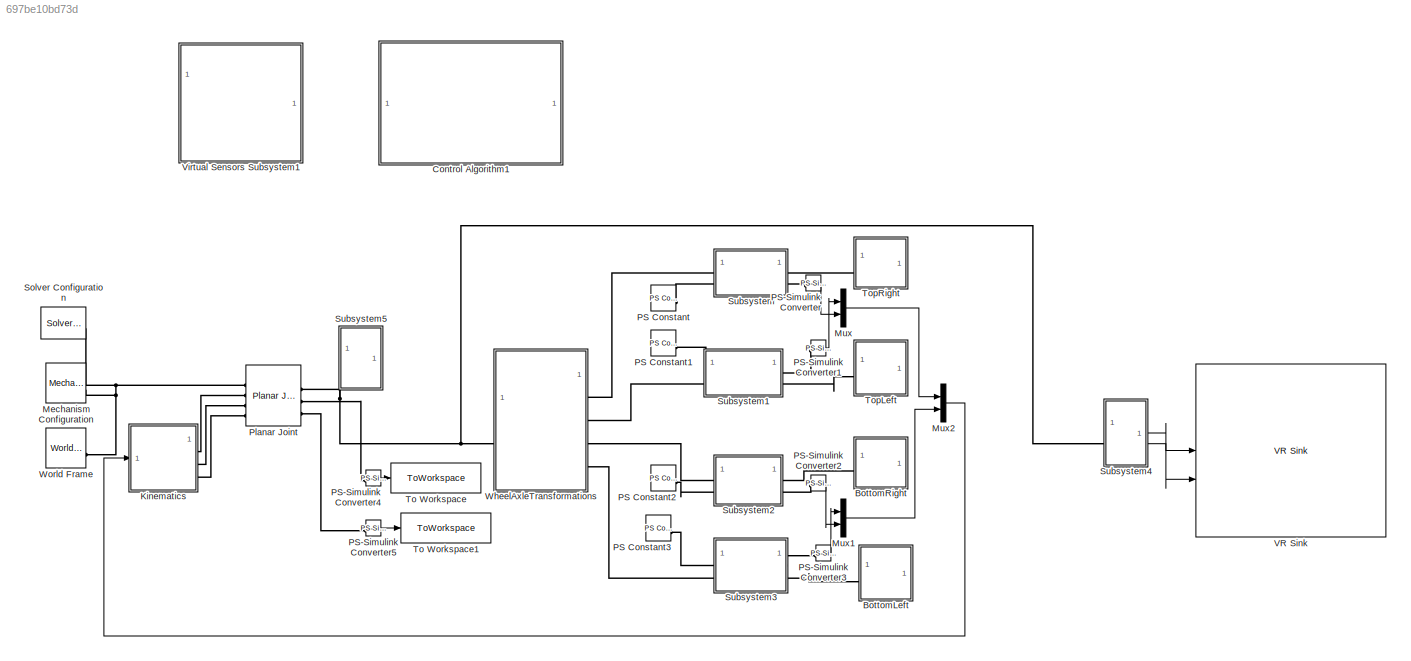
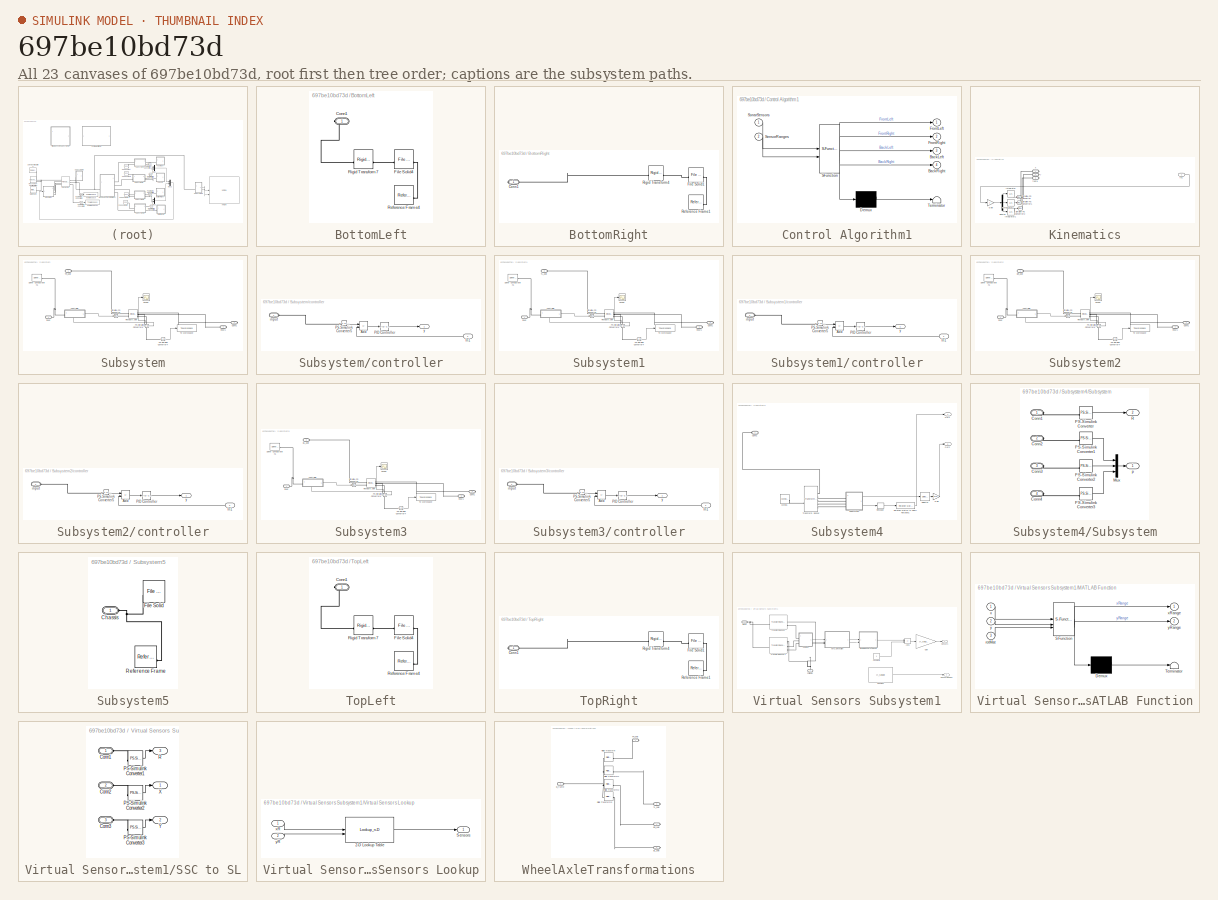
[diagram: thumbnail index - all 23 canvases of the model, root first then tree order]
MODEL slx_697be10bd73d
KIND model
CONFIG AbsTol = auto
CONFIG EnableMultiTasking = off
CONFIG FixedStep = auto
CONFIG MaxStep = auto
CONFIG MinStep = auto
CONFIG RelTol = 1e-3
CONFIG SampleTimeConstraint = Unconstrained
CONFIG SolverName = VariableStepAuto
CONFIG StartTime = 0.0
CONFIG StopTime = 10.0
BLOCK [SubSystem] BottomLeft
BLOCK [PMIOPort] BottomLeft/Conn1
  Side = Right
BLOCK [Reference] BottomLeft/File Solid4  REF=sm_lib/Body Elements/File Solid
  NameLocation = left
  SourceBlock = sm_lib/Body Elements/File Solid
  SourceType = File Solid
BLOCK [Reference] BottomLeft/Reference Frame4  REF=sm_lib/Frames and
Transforms/Reference
Frame
  SourceBlock = sm_lib/Frames and\nTransforms/Reference\nFrame
  SourceType = Reference\nFrame
BLOCK [Reference] BottomLeft/Rigid Transform7  REF=sm_lib/Frames and
Transforms/Rigid
Transform
  SourceBlock = sm_lib/Frames and\nTransforms/Rigid\nTransform
  SourceType = Rigid\nTransform
BLOCK [SubSystem] BottomRight
BLOCK [PMIOPort] BottomRight/Conn1
  Side = Right
BLOCK [Reference] BottomRight/File Solid1  REF=sm_lib/Body Elements/File Solid
  NameLocation = left
  SourceBlock = sm_lib/Body Elements/File Solid
  SourceType = File Solid
BLOCK [Reference] BottomRight/Reference Frame1  REF=sm_lib/Frames and
Transforms/Reference
Frame
  SourceBlock = sm_lib/Frames and\nTransforms/Reference\nFrame
  SourceType = Reference\nFrame
BLOCK [Reference] BottomRight/Rigid Transform4  REF=sm_lib/Frames and
Transforms/Rigid
Transform
  SourceBlock = sm_lib/Frames and\nTransforms/Rigid\nTransform
  SourceType = Rigid\nTransform
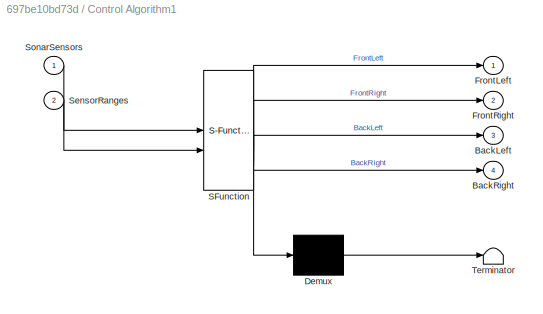
BLOCK [SubSystem] Control Algorithm1
  ErrorFcn = Stateflow.Translate.translate
  PermitHierarchicalResolution = ExplicitOnly
  SFBlockType = Chart
  TreatAsAtomicUnit = on
BLOCK [Demux] Control Algorithm1/ Demux 
  Outputs = 1
BLOCK [S-Function] Control Algorithm1/ SFunction 
  EnableBusSupport = on
  FunctionName = sf_sfun
  PortCounts = [2 5]
  SFcnIsStateOwnerBlock = off
  SFunctionDeploymentMode = off
  Tag = Stateflow S-Function 3
BLOCK [Terminator] Control Algorithm1/ Terminator 
BLOCK [Outport] Control Algorithm1/BackLeft
  Port = 3
BLOCK [Outport] Control Algorithm1/BackRight
  Port = 4
BLOCK [Outport] Control Algorithm1/FrontLeft
BLOCK [Outport] Control Algorithm1/FrontRight
  Port = 2
BLOCK [Inport] Control Algorithm1/SensorRanges
  Port = 2
BLOCK [Inport] Control Algorithm1/SonarSensors
BLOCK [SubSystem] Kinematics
BLOCK [Demux] Kinematics/Demux
  Outputs = 3
BLOCK [Gain] Kinematics/Gain
  Gain = J
  Multiplication = Matrix(K*u) (u vector)
BLOCK [Inport] Kinematics/In1
BLOCK [Integrator] Kinematics/Integrator
BLOCK [Integrator] Kinematics/Integrator1
BLOCK [Integrator] Kinematics/Integrator2
BLOCK [Reference] Kinematics/Simulink-PS Converter  REF=nesl_utility/Simulink-PS
Converter
  SourceBlock = nesl_utility/Simulink-PS\nConverter
  SourceType = Simulink-PS\nConverter
BLOCK [Reference] Kinematics/Simulink-PS Converter1  REF=nesl_utility/Simulink-PS
Converter
  SourceBlock = nesl_utility/Simulink-PS\nConverter
  SourceType = Simulink-PS\nConverter
BLOCK [Reference] Kinematics/Simulink-PS Converter2  REF=nesl_utility/Simulink-PS
Converter
  SourceBlock = nesl_utility/Simulink-PS\nConverter
  SourceType = Simulink-PS\nConverter
BLOCK [PMIOPort] Kinematics/theta
  Port = 3
  Side = Right
BLOCK [PMIOPort] Kinematics/x
  Side = Right
BLOCK [PMIOPort] Kinematics/y
  Port = 2
  Side = Right
BLOCK [Reference] Mechanism Configuration  REF=sm_lib/Utilities/Mechanism
Configuration
  SourceBlock = sm_lib/Utilities/Mechanism\nConfiguration
  SourceType = Mechanism\nConfiguration
BLOCK [Mux] Mux
  DisplayOption = bar
  Inputs = 2
BLOCK [Mux] Mux1
  DisplayOption = bar
  Inputs = 2
BLOCK [Mux] Mux2
  DisplayOption = bar
  Inputs = 2
BLOCK [Reference] PS Constant  REF=fl_lib/Physical Signals/Sources/PS Constant
  SourceBlock = fl_lib/Physical Signals/Sources/PS Constant
  SourceType = PS Constant
BLOCK [Reference] PS Constant1  REF=fl_lib/Physical Signals/Sources/PS Constant
  SourceBlock = fl_lib/Physical Signals/Sources/PS Constant
  SourceType = PS Constant
BLOCK [Reference] PS Constant2  REF=fl_lib/Physical Signals/Sources/PS Constant
  SourceBlock = fl_lib/Physical Signals/Sources/PS Constant
  SourceType = PS Constant
BLOCK [Reference] PS Constant3  REF=fl_lib/Physical Signals/Sources/PS Constant
  SourceBlock = fl_lib/Physical Signals/Sources/PS Constant
  SourceType = PS Constant
BLOCK [Reference] PS-Simulink Converter  REF=nesl_utility/PS-Simulink
Converter
  SourceBlock = nesl_utility/PS-Simulink\nConverter
  SourceType = PS-Simulink\nConverter
BLOCK [Reference] PS-Simulink Converter1  REF=nesl_utility/PS-Simulink
Converter
  SourceBlock = nesl_utility/PS-Simulink\nConverter
  SourceType = PS-Simulink\nConverter
BLOCK [Reference] PS-Simulink Converter2  REF=nesl_utility/PS-Simulink
Converter
  SourceBlock = nesl_utility/PS-Simulink\nConverter
  SourceType = PS-Simulink\nConverter
BLOCK [Reference] PS-Simulink Converter3  REF=nesl_utility/PS-Simulink
Converter
  SourceBlock = nesl_utility/PS-Simulink\nConverter
  SourceType = PS-Simulink\nConverter
BLOCK [Reference] PS-Simulink Converter4  REF=nesl_utility/PS-Simulink
Converter
  SourceBlock = nesl_utility/PS-Simulink\nConverter
  SourceType = PS-Simulink\nConverter
BLOCK [Reference] PS-Simulink Converter5  REF=nesl_utility/PS-Simulink
Converter
  SourceBlock = nesl_utility/PS-Simulink\nConverter
  SourceType = PS-Simulink\nConverter
BLOCK [Reference] Planar Joint  REF=sm_lib/Joints/Planar Joint
  SourceBlock = sm_lib/Joints/Planar Joint
  SourceType = Planar Joint
BLOCK [Reference] Solver Configuration  REF=nesl_utility/Solver
Configuration
  SourceBlock = nesl_utility/Solver\nConfiguration
  SourceType = Solver\nConfiguration
BLOCK [SubSystem] Subsystem
BLOCK [PMIOPort] Subsystem/Conn1
  Port = 3
  Side = Right
BLOCK [Reference] Subsystem/PS-Simulink Converter4  REF=nesl_utility/PS-Simulink
Converter
  SourceBlock = nesl_utility/PS-Simulink\nConverter
  SourceType = PS-Simulink\nConverter
BLOCK [Reference] Subsystem/PS-Simulink Converter6  REF=nesl_utility/PS-Simulink
Converter
  SourceBlock = nesl_utility/PS-Simulink\nConverter
  SourceType = PS-Simulink\nConverter
BLOCK [Reference] Subsystem/Revolute Joint  REF=sm_lib/Joints/Revolute Joint
  SourceBlock = sm_lib/Joints/Revolute Joint
  SourceType = Revolute Joint
BLOCK [Scope] Subsystem/Scope
  Floating = off
  NumInputPorts = 1
  ScopeSpecificationString = Simulink.scopes.TimeScopeBlockCfg('CurrentConfiguration', extmgr.ConfigurationSet(extmgr.Configuration('Core','General UI',true),extmgr.Configuration('Core','Source UI',true),extmgr.Configuration('Sources','WiredSimulink',true),extmgr.Configuration('Visuals','Time Domain',true,'SerializedDisplays',{struct('MinYLimReal','-1.12143','MaxYLimReal','0.1246','YLabelReal','','MinYLimMag','0.00000','MaxYL...<+1340ch>  <repeated x4 — deduplicated; at blocks: Scope>
BLOCK [Reference] Subsystem/Simulink-PS Converter  REF=nesl_utility/Simulink-PS
Converter
  SourceBlock = nesl_utility/Simulink-PS\nConverter
  SourceType = Simulink-PS\nConverter
BLOCK [Reference] Subsystem/Solver Configuration1  REF=nesl_utility/Solver
Configuration
  SourceBlock = nesl_utility/Solver\nConfiguration
  SourceType = Solver\nConfiguration
BLOCK [PMIOPort] Subsystem/TR_axle
  Side = Left
BLOCK [ToWorkspace] Subsystem/To Workspace
  FixptAsFi = on
  MaxDataPoints = inf
  SampleTime = -1
  SaveFormat = Timeseries
  VariableName = trqtopRight
BLOCK [SubSystem] Subsystem/controller
  PortSchema = {"entries":[{"content":{"sides":[{"content":{"connectorIds":["LConn1"]},"type":"ConnectorPlacement.EquallySpacedRectSide","uuid":"4241acf2-7ed6-4d1d-bdf9-96dee7444175"},{"content":{"connectorIds":["Out1"],"side":"RIGHT"},"type":"ConnectorPlacement.EquallySpacedRectSide","uuid":"205e3922-88a0-4f54-bc57-6b32e46413df"},{"content":{"connectorIds":[],"side":"TOP"},"type":"ConnectorPlacement.EquallySpac...<+392ch>  <repeated x4 — deduplicated; at blocks: controller>
BLOCK [Sum] Subsystem/controller/Add
  IconShape = rectangular
  Inputs = +-
BLOCK [Inport] Subsystem/controller/In1
BLOCK [Reference] Subsystem/controller/PID Controller  REF=slpidlib/PID Controller
  LibrarySourceBlock = simulink/Continuous/PID Controller
  SourceBlock = slpidlib/PID Controller
  SourceType = PID 1dof
BLOCK [Reference] Subsystem/controller/PS-Simulink Converter5  REF=nesl_utility/PS-Simulink
Converter
  SourceBlock = nesl_utility/PS-Simulink\nConverter
  SourceType = PS-Simulink\nConverter
BLOCK [PMIOPort] Subsystem/controller/input
  Side = Left
BLOCK [Outport] Subsystem/controller/y
BLOCK [PMIOPort] Subsystem/input
  Port = 2
  Side = Left
BLOCK [PMIOPort] Subsystem/input1
  Port = 4
  Side = Right
BLOCK [SubSystem] Subsystem1
BLOCK [PMIOPort] Subsystem1/Conn1
  Port = 4
  Side = Right
BLOCK [Reference] Subsystem1/PS-Simulink Converter4  REF=nesl_utility/PS-Simulink
Converter
  SourceBlock = nesl_utility/PS-Simulink\nConverter
  SourceType = PS-Simulink\nConverter
BLOCK [Reference] Subsystem1/PS-Simulink Converter6  REF=nesl_utility/PS-Simulink
Converter
  SourceBlock = nesl_utility/PS-Simulink\nConverter
  SourceType = PS-Simulink\nConverter
BLOCK [Reference] Subsystem1/Revolute Joint  REF=sm_lib/Joints/Revolute Joint
  SourceBlock = sm_lib/Joints/Revolute Joint
  SourceType = Revolute Joint
BLOCK [Scope] Subsystem1/Scope
  Floating = off
  NumInputPorts = 1
BLOCK [Reference] Subsystem1/Simulink-PS Converter  REF=nesl_utility/Simulink-PS
Converter
  SourceBlock = nesl_utility/Simulink-PS\nConverter
  SourceType = Simulink-PS\nConverter
BLOCK [Reference] Subsystem1/Solver Configuration1  REF=nesl_utility/Solver
Configuration
  SourceBlock = nesl_utility/Solver\nConfiguration
  SourceType = Solver\nConfiguration
BLOCK [PMIOPort] Subsystem1/TL_axle
  Port = 2
  Side = Left
BLOCK [ToWorkspace] Subsystem1/To Workspace
  FixptAsFi = on
  MaxDataPoints = inf
  SampleTime = -1
  SaveFormat = Timeseries
  VariableName = trqtopLeft
BLOCK [SubSystem] Subsystem1/controller
BLOCK [Sum] Subsystem1/controller/Add
  IconShape = rectangular
  Inputs = +-
BLOCK [Inport] Subsystem1/controller/In1
BLOCK [Reference] Subsystem1/controller/PID Controller  REF=slpidlib/PID Controller
  LibrarySourceBlock = simulink/Continuous/PID Controller
  SourceBlock = slpidlib/PID Controller
  SourceType = PID 1dof
BLOCK [Reference] Subsystem1/controller/PS-Simulink Converter5  REF=nesl_utility/PS-Simulink
Converter
  SourceBlock = nesl_utility/PS-Simulink\nConverter
  SourceType = PS-Simulink\nConverter
BLOCK [PMIOPort] Subsystem1/controller/input
  Side = Left
BLOCK [Outport] Subsystem1/controller/y
BLOCK [PMIOPort] Subsystem1/input
  Side = Left
BLOCK [PMIOPort] Subsystem1/input1
  Port = 3
  Side = Right
BLOCK [SubSystem] Subsystem2
BLOCK [PMIOPort] Subsystem2/BR_axle
  Side = Left
BLOCK [PMIOPort] Subsystem2/Conn1
  Port = 3
  Side = Right
BLOCK [Reference] Subsystem2/PS-Simulink Converter4  REF=nesl_utility/PS-Simulink
Converter
  SourceBlock = nesl_utility/PS-Simulink\nConverter
  SourceType = PS-Simulink\nConverter
BLOCK [Reference] Subsystem2/PS-Simulink Converter6  REF=nesl_utility/PS-Simulink
Converter
  SourceBlock = nesl_utility/PS-Simulink\nConverter
  SourceType = PS-Simulink\nConverter
BLOCK [Reference] Subsystem2/Revolute Joint  REF=sm_lib/Joints/Revolute Joint
  SourceBlock = sm_lib/Joints/Revolute Joint
  SourceType = Revolute Joint
BLOCK [Scope] Subsystem2/Scope
  Floating = off
  NumInputPorts = 1
BLOCK [Reference] Subsystem2/Simulink-PS Converter  REF=nesl_utility/Simulink-PS
Converter
  SourceBlock = nesl_utility/Simulink-PS\nConverter
  SourceType = Simulink-PS\nConverter
BLOCK [Reference] Subsystem2/Solver Configuration1  REF=nesl_utility/Solver
Configuration
  SourceBlock = nesl_utility/Solver\nConfiguration
  SourceType = Solver\nConfiguration
BLOCK [ToWorkspace] Subsystem2/To Workspace
  FixptAsFi = on
  MaxDataPoints = inf
  SampleTime = -1
  SaveFormat = Timeseries
  VariableName = trqbottomRight
BLOCK [SubSystem] Subsystem2/controller
BLOCK [Sum] Subsystem2/controller/Add
  IconShape = rectangular
  Inputs = +-
BLOCK [Inport] Subsystem2/controller/In1
BLOCK [Reference] Subsystem2/controller/PID Controller  REF=slpidlib/PID Controller
  LibrarySourceBlock = simulink/Continuous/PID Controller
  SourceBlock = slpidlib/PID Controller
  SourceType = PID 1dof
BLOCK [Reference] Subsystem2/controller/PS-Simulink Converter5  REF=nesl_utility/PS-Simulink
Converter
  SourceBlock = nesl_utility/PS-Simulink\nConverter
  SourceType = PS-Simulink\nConverter
BLOCK [PMIOPort] Subsystem2/controller/input
  Side = Left
BLOCK [Outport] Subsystem2/controller/y
BLOCK [PMIOPort] Subsystem2/input
  Port = 2
  Side = Left
BLOCK [PMIOPort] Subsystem2/input1
  Port = 4
  Side = Right
BLOCK [SubSystem] Subsystem3
BLOCK [PMIOPort] Subsystem3/BL_axle
  Port = 2
  Side = Left
BLOCK [PMIOPort] Subsystem3/Conn1
  Port = 4
  Side = Right
BLOCK [Reference] Subsystem3/PS-Simulink Converter4  REF=nesl_utility/PS-Simulink
Converter
  SourceBlock = nesl_utility/PS-Simulink\nConverter
  SourceType = PS-Simulink\nConverter
BLOCK [Reference] Subsystem3/PS-Simulink Converter6  REF=nesl_utility/PS-Simulink
Converter
  SourceBlock = nesl_utility/PS-Simulink\nConverter
  SourceType = PS-Simulink\nConverter
BLOCK [Reference] Subsystem3/Revolute Joint  REF=sm_lib/Joints/Revolute Joint
  SourceBlock = sm_lib/Joints/Revolute Joint
  SourceType = Revolute Joint
BLOCK [Scope] Subsystem3/Scope
  Floating = off
  NumInputPorts = 1
BLOCK [Reference] Subsystem3/Simulink-PS Converter  REF=nesl_utility/Simulink-PS
Converter
  SourceBlock = nesl_utility/Simulink-PS\nConverter
  SourceType = Simulink-PS\nConverter
BLOCK [Reference] Subsystem3/Solver Configuration1  REF=nesl_utility/Solver
Configuration
  SourceBlock = nesl_utility/Solver\nConfiguration
  SourceType = Solver\nConfiguration
BLOCK [ToWorkspace] Subsystem3/To Workspace
  FixptAsFi = on
  MaxDataPoints = inf
  SampleTime = -1
  SaveFormat = Timeseries
  VariableName = trqbottomLeft
BLOCK [SubSystem] Subsystem3/controller
BLOCK [Sum] Subsystem3/controller/Add
  IconShape = rectangular
  Inputs = +-
BLOCK [Inport] Subsystem3/controller/In1
BLOCK [Reference] Subsystem3/controller/PID Controller  REF=slpidlib/PID Controller
  LibrarySourceBlock = simulink/Continuous/PID Controller
  SourceBlock = slpidlib/PID Controller
  SourceType = PID 1dof
BLOCK [Reference] Subsystem3/controller/PS-Simulink Converter5  REF=nesl_utility/PS-Simulink
Converter
  SourceBlock = nesl_utility/PS-Simulink\nConverter
  SourceType = PS-Simulink\nConverter
BLOCK [PMIOPort] Subsystem3/controller/input
  Side = Left
BLOCK [Outport] Subsystem3/controller/y
BLOCK [PMIOPort] Subsystem3/input
  Side = Left
BLOCK [PMIOPort] Subsystem3/input1
  Port = 3
  Side = Right
BLOCK [SubSystem] Subsystem4
BLOCK [PMIOPort] Subsystem4/Conn1
  Side = Left
BLOCK [Gain] Subsystem4/Gain
  Gain = [1 1 0]
BLOCK [Outport] Subsystem4/Out1
BLOCK [Outport] Subsystem4/Out2
  Port = 2
BLOCK [Reshape] Subsystem4/Reshape
  OutputDimensionality = Customize
  OutputDimensions = [3 3]
BLOCK [Reference] Subsystem4/Rotation Matrix to VRML Rotation1  REF=vrlib/Utilities/Rotation Matrix
to VR Rotation
  SourceBlock = vrlib/Utilities/Rotation Matrix\nto VR Rotation
  SourceType = Rotation Matrix to VR Rotation
BLOCK [Selector] Subsystem4/Selector
  IndexOptions = Index vector (dialog)
  Indices = [1 2 3]
  InputPortWidth = 3
  OutputSizes = 1
BLOCK [SubSystem] Subsystem4/Subsystem
BLOCK [PMIOPort] Subsystem4/Subsystem/Conn1
  Side = Left
BLOCK [PMIOPort] Subsystem4/Subsystem/Conn2
  Port = 2
  Side = Left
BLOCK [PMIOPort] Subsystem4/Subsystem/Conn3
  Port = 3
  Side = Left
BLOCK [PMIOPort] Subsystem4/Subsystem/Conn4
  Port = 4
  Side = Left
BLOCK [Mux] Subsystem4/Subsystem/Mux
  DisplayOption = bar
  Inputs = 3
BLOCK [Reference] Subsystem4/Subsystem/PS-Simulink Converter  REF=nesl_utility/PS-Simulink
Converter
  SourceBlock = nesl_utility/PS-Simulink\nConverter
  SourceType = PS-Simulink\nConverter
BLOCK [Reference] Subsystem4/Subsystem/PS-Simulink Converter1  REF=nesl_utility/PS-Simulink
Converter
  SourceBlock = nesl_utility/PS-Simulink\nConverter
  SourceType = PS-Simulink\nConverter
BLOCK [Reference] Subsystem4/Subsystem/PS-Simulink Converter2  REF=nesl_utility/PS-Simulink
Converter
  SourceBlock = nesl_utility/PS-Simulink\nConverter
  SourceType = PS-Simulink\nConverter
BLOCK [Reference] Subsystem4/Subsystem/PS-Simulink Converter3  REF=nesl_utility/PS-Simulink
Converter
  SourceBlock = nesl_utility/PS-Simulink\nConverter
  SourceType = PS-Simulink\nConverter
BLOCK [Outport] Subsystem4/Subsystem/R
  Port = 2
BLOCK [Outport] Subsystem4/Subsystem/p
BLOCK [Reference] Subsystem4/Transform Sensor  REF=sm_lib/Frames and
Transforms/Transform
Sensor
  SourceBlock = sm_lib/Frames and\nTransforms/Transform\nSensor
  SourceType = Transform\nSensor
BLOCK [Reference] Subsystem4/World1  REF=sm_lib/Frames and
Transforms/World Frame
  SourceBlock = sm_lib/Frames and\nTransforms/World Frame
  SourceType = World Frame
BLOCK [SubSystem] Subsystem5
BLOCK [PMIOPort] Subsystem5/Chassis
  Side = Left
BLOCK [Reference] Subsystem5/File Solid  REF=sm_lib/Body Elements/File Solid
  SourceBlock = sm_lib/Body Elements/File Solid
  SourceType = File Solid
BLOCK [Reference] Subsystem5/Reference Frame  REF=sm_lib/Frames and
Transforms/Reference
Frame
  SourceBlock = sm_lib/Frames and\nTransforms/Reference\nFrame
  SourceType = Reference\nFrame
BLOCK [ToWorkspace] To Workspace
  FixptAsFi = on
  MaxDataPoints = inf
  SampleTime = -1
  SaveFormat = Timeseries
  VariableName = fx
BLOCK [ToWorkspace] To Workspace1
  FixptAsFi = on
  MaxDataPoints = inf
  SampleTime = -1
  SaveFormat = Timeseries
  VariableName = fy
BLOCK [SubSystem] TopLeft
BLOCK [PMIOPort] TopLeft/Conn1
  Side = Right
BLOCK [Reference] TopLeft/File Solid4  REF=sm_lib/Body Elements/File Solid
  NameLocation = left
  SourceBlock = sm_lib/Body Elements/File Solid
  SourceType = File Solid
BLOCK [Reference] TopLeft/Reference Frame4  REF=sm_lib/Frames and
Transforms/Reference
Frame
  SourceBlock = sm_lib/Frames and\nTransforms/Reference\nFrame
  SourceType = Reference\nFrame
BLOCK [Reference] TopLeft/Rigid Transform7  REF=sm_lib/Frames and
Transforms/Rigid
Transform
  SourceBlock = sm_lib/Frames and\nTransforms/Rigid\nTransform
  SourceType = Rigid\nTransform
BLOCK [SubSystem] TopRight
BLOCK [PMIOPort] TopRight/Conn1
  Side = Right
BLOCK [Reference] TopRight/File Solid1  REF=sm_lib/Body Elements/File Solid
  NameLocation = left
  SourceBlock = sm_lib/Body Elements/File Solid
  SourceType = File Solid
BLOCK [Reference] TopRight/Reference Frame1  REF=sm_lib/Frames and
Transforms/Reference
Frame
  SourceBlock = sm_lib/Frames and\nTransforms/Reference\nFrame
  SourceType = Reference\nFrame
BLOCK [Reference] TopRight/Rigid Transform4  REF=sm_lib/Frames and
Transforms/Rigid
Transform
  SourceBlock = sm_lib/Frames and\nTransforms/Rigid\nTransform
  SourceType = Rigid\nTransform
BLOCK [Reference] VR Sink  REF=vrlib/VR Sink
  InstantiateOnLoad = on
  SourceBlock = vrlib/VR Sink
  SourceType = Virtual Reality Sink
BLOCK [SubSystem] Virtual Sensors Subsystem1
BLOCK [Sum] Virtual Sensors Subsystem1/Add1
  IconShape = rectangular
  Inputs = -+
BLOCK [PMIOPort] Virtual Sensors Subsystem1/Base
  Side = Left
BLOCK [Constant] Virtual Sensors Subsystem1/Constant
  Value = [r_range]
BLOCK [Constant] Virtual Sensors Subsystem1/Constant1
BLOCK [PMIOPort] Virtual Sensors Subsystem1/Follower
  NameLocation = right
  Port = 2
  Side = Left
BLOCK [Gain] Virtual Sensors Subsystem1/Gain
  Gain = [r_range]
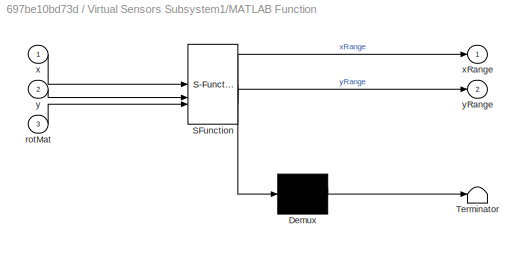
BLOCK [SubSystem] Virtual Sensors Subsystem1/MATLAB Function
  ErrorFcn = Stateflow.Translate.translate
  PermitHierarchicalResolution = ExplicitOnly
  SFBlockType = MATLAB Function
  TreatAsAtomicUnit = on
BLOCK [Demux] Virtual Sensors Subsystem1/MATLAB Function/ Demux 
  Outputs = 1
BLOCK [S-Function] Virtual Sensors Subsystem1/MATLAB Function/ SFunction 
  EnableBusSupport = on
  FunctionName = sf_sfun
  Parameters = r_range
  PortCounts = [3 3]
  SFcnIsStateOwnerBlock = off
  SFunctionDeploymentMode = off
  Tag = Stateflow S-Function 4
BLOCK [Terminator] Virtual Sensors Subsystem1/MATLAB Function/ Terminator 
BLOCK [Inport] Virtual Sensors Subsystem1/MATLAB Function/rotMat
  Port = 3
BLOCK [Inport] Virtual Sensors Subsystem1/MATLAB Function/x
BLOCK [Outport] Virtual Sensors Subsystem1/MATLAB Function/xRange
BLOCK [Inport] Virtual Sensors Subsystem1/MATLAB Function/y
  Port = 2
BLOCK [Outport] Virtual Sensors Subsystem1/MATLAB Function/yRange
  Port = 2
BLOCK [SubSystem] Virtual Sensors Subsystem1/SSC to SL
BLOCK [PMIOPort] Virtual Sensors Subsystem1/SSC to SL/Conn1
  Side = Left
BLOCK [PMIOPort] Virtual Sensors Subsystem1/SSC to SL/Conn2
  Port = 2
  Side = Left
BLOCK [PMIOPort] Virtual Sensors Subsystem1/SSC to SL/Conn3
  Port = 3
  Side = Left
BLOCK [Reference] Virtual Sensors Subsystem1/SSC to SL/PS-Simulink Converter1  REF=nesl_utility/PS-Simulink
Converter
  SourceBlock = nesl_utility/PS-Simulink\nConverter
  SourceType = PS-Simulink\nConverter
BLOCK [Reference] Virtual Sensors Subsystem1/SSC to SL/PS-Simulink Converter2  REF=nesl_utility/PS-Simulink
Converter
  SourceBlock = nesl_utility/PS-Simulink\nConverter
  SourceType = PS-Simulink\nConverter
BLOCK [Reference] Virtual Sensors Subsystem1/SSC to SL/PS-Simulink Converter3  REF=nesl_utility/PS-Simulink
Converter
  SourceBlock = nesl_utility/PS-Simulink\nConverter
  SourceType = PS-Simulink\nConverter
BLOCK [Outport] Virtual Sensors Subsystem1/SSC to SL/R
  Port = 3
BLOCK [Outport] Virtual Sensors Subsystem1/SSC to SL/X
BLOCK [Outport] Virtual Sensors Subsystem1/SSC to SL/Y
  Port = 2
BLOCK [Outport] Virtual Sensors Subsystem1/Sensor Ranges
  Port = 2
BLOCK [Outport] Virtual Sensors Subsystem1/Sensors
BLOCK [Reference] Virtual Sensors Subsystem1/Transform Sensor  REF=sm_lib/Frames and
Transforms/Transform
Sensor
  SourceBlock = sm_lib/Frames and\nTransforms/Transform\nSensor
  SourceType = Transform\nSensor
BLOCK [Reference] Virtual Sensors Subsystem1/Transform Sensor1  REF=sm_lib/Frames and
Transforms/Transform
Sensor
  SourceBlock = sm_lib/Frames and\nTransforms/Transform\nSensor
  SourceType = Transform\nSensor
BLOCK [SubSystem] Virtual Sensors Subsystem1/Virtual Sensors Lookup
BLOCK [Lookup_n-D] Virtual Sensors Subsystem1/Virtual Sensors Lookup/2-D Lookup Table
  BreakpointsForDimension1 = -1:0.001:1
  BreakpointsForDimension2 = -6:0.001:6
  InputPortMap = u0,u1
  RndMeth = Simplest
  Table = World_LUT
BLOCK [Outport] Virtual Sensors Subsystem1/Virtual Sensors Lookup/Sensors
BLOCK [Inport] Virtual Sensors Subsystem1/Virtual Sensors Lookup/xR
  OutDataTypeStr = double
  SignalType = real
  VarSizeSig = No
BLOCK [Inport] Virtual Sensors Subsystem1/Virtual Sensors Lookup/yR
  OutDataTypeStr = double
  Port = 2
  SignalType = real
  VarSizeSig = No
BLOCK [SubSystem] WheelAxleTransformations
BLOCK [PMIOPort] WheelAxleTransformations/BL_axle
  Port = 5
  Side = Right
BLOCK [PMIOPort] WheelAxleTransformations/BR_axle
  Port = 4
  Side = Right
BLOCK [PMIOPort] WheelAxleTransformations/B_frame
  Port = 2
  Side = Left
BLOCK [Reference] WheelAxleTransformations/Rigid Transform  REF=sm_lib/Frames and
Transforms/Rigid
Transform
  SourceBlock = sm_lib/Frames and\nTransforms/Rigid\nTransform
  SourceType = Rigid\nTransform
BLOCK [Reference] WheelAxleTransformations/Rigid Transform1  REF=sm_lib/Frames and
Transforms/Rigid
Transform
  SourceBlock = sm_lib/Frames and\nTransforms/Rigid\nTransform
  SourceType = Rigid\nTransform
BLOCK [Reference] WheelAxleTransformations/Rigid Transform2  REF=sm_lib/Frames and
Transforms/Rigid
Transform
  SourceBlock = sm_lib/Frames and\nTransforms/Rigid\nTransform
  SourceType = Rigid\nTransform
BLOCK [Reference] WheelAxleTransformations/Rigid Transform3  REF=sm_lib/Frames and
Transforms/Rigid
Transform
  SourceBlock = sm_lib/Frames and\nTransforms/Rigid\nTransform
  SourceType = Rigid\nTransform
BLOCK [PMIOPort] WheelAxleTransformations/TL_axle
  Port = 3
  Side = Right
BLOCK [PMIOPort] WheelAxleTransformations/TR_axle
  Side = Right
BLOCK [Reference] World Frame  REF=sm_lib/Frames and
Transforms/World Frame
  SourceBlock = sm_lib/Frames and\nTransforms/World Frame
  SourceType = World Frame
LINE Kinematics/Demux:1 -> Kinematics/Integrator:1
LINE Kinematics/Demux:2 -> Kinematics/Integrator2:1
LINE Kinematics/Demux:3 -> Kinematics/Integrator1:1
LINE Kinematics/Gain:1 -> Kinematics/Demux:1
LINE Kinematics/In1:1 -> Kinematics/Gain:1
LINE Kinematics/Integrator1:1 -> Kinematics/Simulink-PS Converter2:1
LINE Kinematics/Integrator2:1 -> Kinematics/Simulink-PS Converter1:1
LINE Kinematics/Integrator:1 -> Kinematics/Simulink-PS Converter:1
LINE Mux1:1 -> Mux2:2
LINE Mux2:1 -> Kinematics:1
LINE Mux:1 -> Mux2:1
LINE PS-Simulink Converter1:1 -> Mux:1
LINE PS-Simulink Converter2:1 -> Mux1:2
LINE PS-Simulink Converter3:1 -> Mux1:1
LINE PS-Simulink Converter4:1 -> To Workspace:1
LINE PS-Simulink Converter5:1 -> To Workspace1:1
LINE PS-Simulink Converter:1 -> Mux:2
LINE Subsystem/PS-Simulink Converter4:1 -> Subsystem/To Workspace:1
NET Subsystem/PS-Simulink Converter6:1 -> Subsystem/Scope:1, Subsystem/controller:1
LINE Subsystem/controller/Add:1 -> Subsystem/controller/PID Controller:1
LINE Subsystem/controller/In1:1 -> Subsystem/controller/Add:2
LINE Subsystem/controller/PID Controller:1 -> Subsystem/controller/y:1
LINE Subsystem/controller/PS-Simulink Converter5:1 -> Subsystem/controller/Add:1
LINE Subsystem/controller:1 -> Subsystem/Simulink-PS Converter:1
LINE Subsystem1/PS-Simulink Converter4:1 -> Subsystem1/To Workspace:1
NET Subsystem1/PS-Simulink Converter6:1 -> Subsystem1/Scope:1, Subsystem1/controller:1
LINE Subsystem1/controller/Add:1 -> Subsystem1/controller/PID Controller:1
LINE Subsystem1/controller/In1:1 -> Subsystem1/controller/Add:2
LINE Subsystem1/controller/PID Controller:1 -> Subsystem1/controller/y:1
LINE Subsystem1/controller/PS-Simulink Converter5:1 -> Subsystem1/controller/Add:1
LINE Subsystem1/controller:1 -> Subsystem1/Simulink-PS Converter:1
LINE Subsystem2/PS-Simulink Converter4:1 -> Subsystem2/To Workspace:1
NET Subsystem2/PS-Simulink Converter6:1 -> Subsystem2/Scope:1, Subsystem2/controller:1
LINE Subsystem2/controller/Add:1 -> Subsystem2/controller/PID Controller:1
LINE Subsystem2/controller/In1:1 -> Subsystem2/controller/Add:2
LINE Subsystem2/controller/PID Controller:1 -> Subsystem2/controller/y:1
LINE Subsystem2/controller/PS-Simulink Converter5:1 -> Subsystem2/controller/Add:1
LINE Subsystem2/controller:1 -> Subsystem2/Simulink-PS Converter:1
LINE Subsystem3/PS-Simulink Converter4:1 -> Subsystem3/To Workspace:1
NET Subsystem3/PS-Simulink Converter6:1 -> Subsystem3/Scope:1, Subsystem3/controller:1
LINE Subsystem3/controller/Add:1 -> Subsystem3/controller/PID Controller:1
LINE Subsystem3/controller/In1:1 -> Subsystem3/controller/Add:2
LINE Subsystem3/controller/PID Controller:1 -> Subsystem3/controller/y:1
LINE Subsystem3/controller/PS-Simulink Converter5:1 -> Subsystem3/controller/Add:1
LINE Subsystem3/controller:1 -> Subsystem3/Simulink-PS Converter:1
LINE Subsystem4/Gain:1 -> Subsystem4/Out2:1
LINE Subsystem4/Reshape:1 -> Subsystem4/Rotation Matrix to VRML Rotation1:1
LINE Subsystem4/Rotation Matrix to VRML Rotation1:1 -> Subsystem4/Out1:1
LINE Subsystem4/Selector:1 -> Subsystem4/Gain:1
LINE Subsystem4/Subsystem/Mux:1 -> Subsystem4/Subsystem/p:1
LINE Subsystem4/Subsystem/PS-Simulink Converter1:1 -> Subsystem4/Subsystem/Mux:1
LINE Subsystem4/Subsystem/PS-Simulink Converter2:1 -> Subsystem4/Subsystem/Mux:2
LINE Subsystem4/Subsystem/PS-Simulink Converter3:1 -> Subsystem4/Subsystem/Mux:3
LINE Subsystem4/Subsystem/PS-Simulink Converter:1 -> Subsystem4/Subsystem/R:1
LINE Subsystem4/Subsystem:1 -> Subsystem4/Selector:1
LINE Subsystem4/Subsystem:2 -> Subsystem4/Reshape:1
LINE Subsystem4:1 -> VR Sink:1
LINE Subsystem4:2 -> VR Sink:2
LINE Virtual Sensors Subsystem1/Add1:1 -> Virtual Sensors Subsystem1/Gain:1
LINE Virtual Sensors Subsystem1/Constant1:1 -> Virtual Sensors Subsystem1/Add1:2
LINE Virtual Sensors Subsystem1/Constant:1 -> Virtual Sensors Subsystem1/Sensor Ranges:1
LINE Virtual Sensors Subsystem1/Gain:1 -> Virtual Sensors Subsystem1/Sensors:1
LINE Virtual Sensors Subsystem1/MATLAB Function:1 -> Virtual Sensors Subsystem1/Virtual Sensors Lookup:1
LINE Virtual Sensors Subsystem1/MATLAB Function:2 -> Virtual Sensors Subsystem1/Virtual Sensors Lookup:2
LINE Virtual Sensors Subsystem1/SSC to SL/PS-Simulink Converter1:1 -> Virtual Sensors Subsystem1/SSC to SL/R:1
LINE Virtual Sensors Subsystem1/SSC to SL/PS-Simulink Converter2:1 -> Virtual Sensors Subsystem1/SSC to SL/X:1
LINE Virtual Sensors Subsystem1/SSC to SL/PS-Simulink Converter3:1 -> Virtual Sensors Subsystem1/SSC to SL/Y:1
LINE Virtual Sensors Subsystem1/SSC to SL:1 -> Virtual Sensors Subsystem1/MATLAB Function:1
LINE Virtual Sensors Subsystem1/SSC to SL:2 -> Virtual Sensors Subsystem1/MATLAB Function:2
LINE Virtual Sensors Subsystem1/SSC to SL:3 -> Virtual Sensors Subsystem1/MATLAB Function:3
LINE Virtual Sensors Subsystem1/Virtual Sensors Lookup/2-D Lookup Table:1 -> Virtual Sensors Subsystem1/Virtual Sensors Lookup/Sensors:1
LINE Virtual Sensors Subsystem1/Virtual Sensors Lookup/xR:1 -> Virtual Sensors Subsystem1/Virtual Sensors Lookup/2-D Lookup Table:1
LINE Virtual Sensors Subsystem1/Virtual Sensors Lookup/yR:1 -> Virtual Sensors Subsystem1/Virtual Sensors Lookup/2-D Lookup Table:2
LINE Virtual Sensors Subsystem1/Virtual Sensors Lookup:1 -> Virtual Sensors Subsystem1/Add1:1
PLINE BottomLeft/Conn1:RConn1 -- BottomLeft/Rigid Transform7:RConn1
PLINE BottomLeft/File Solid4:LConn1 -- BottomLeft/Rigid Transform7:LConn1
PLINE BottomLeft/File Solid4:RConn1 -- BottomLeft/Reference Frame4:RConn1
PLINE BottomLeft:RConn1 -- Subsystem3:RConn2
PLINE BottomRight/Conn1:RConn1 -- BottomRight/Rigid Transform4:RConn1
PLINE BottomRight/File Solid1:LConn1 -- BottomRight/Rigid Transform4:LConn1
PLINE BottomRight/File Solid1:RConn1 -- BottomRight/Reference Frame1:RConn1
PLINE BottomRight:RConn1 -- Subsystem2:RConn1
PLINE Kinematics/Simulink-PS Converter1:RConn1 -- Kinematics/x:RConn1
PLINE Kinematics/Simulink-PS Converter2:RConn1 -- Kinematics/theta:RConn1
PLINE Kinematics/Simulink-PS Converter:RConn1 -- Kinematics/y:RConn1
PLINE Kinematics:RConn1 -- Planar Joint:LConn2
PLINE Kinematics:RConn2 -- Planar Joint:LConn3
PLINE Kinematics:RConn3 -- Planar Joint:LConn4
PNET net1: Mechanism Configuration:RConn1 -- Planar Joint:LConn1 -- Solver Configuration:RConn1 -- World Frame:RConn1
PLINE PS Constant1:RConn1 -- Subsystem1:LConn1
PLINE PS Constant2:RConn1 -- Subsystem2:LConn2
PLINE PS Constant3:RConn1 -- Subsystem3:LConn1
PLINE PS Constant:RConn1 -- Subsystem:LConn2
PLINE PS-Simulink Converter1:LConn1 -- Subsystem1:RConn1
PLINE PS-Simulink Converter2:LConn1 -- Subsystem2:RConn2
PLINE PS-Simulink Converter3:LConn1 -- Subsystem3:RConn1
PLINE PS-Simulink Converter4:LConn1 -- Planar Joint:RConn2
PLINE PS-Simulink Converter5:LConn1 -- Planar Joint:RConn3
PLINE PS-Simulink Converter:LConn1 -- Subsystem:RConn2
PNET net2: Planar Joint:RConn1 -- Subsystem4:LConn1 -- Subsystem5:LConn1 -- WheelAxleTransformations:LConn1
PLINE Subsystem/Conn1:RConn1 -- Subsystem/Revolute Joint:RConn1
PLINE Subsystem/PS-Simulink Converter4:LConn1 -- Subsystem/Revolute Joint:RConn3
PNET net3: Subsystem/PS-Simulink Converter6:LConn1 -- Subsystem/Revolute Joint:RConn2 -- Subsystem/input1:RConn1
PLINE Subsystem/Revolute Joint:LConn1 -- Subsystem/TR_axle:RConn1
PLINE Subsystem/Revolute Joint:LConn2 -- Subsystem/Simulink-PS Converter:RConn1
PNET net4: Subsystem/Solver Configuration1:RConn1 -- Subsystem/controller:LConn1 -- Subsystem/input:RConn1
PLINE Subsystem/controller/PS-Simulink Converter5:LConn1 -- Subsystem/controller/input:RConn1
PLINE Subsystem1/Conn1:RConn1 -- Subsystem1/Revolute Joint:RConn1
PLINE Subsystem1/PS-Simulink Converter4:LConn1 -- Subsystem1/Revolute Joint:RConn3
PNET net5: Subsystem1/PS-Simulink Converter6:LConn1 -- Subsystem1/Revolute Joint:RConn2 -- Subsystem1/input1:RConn1
PLINE Subsystem1/Revolute Joint:LConn1 -- Subsystem1/TL_axle:RConn1
PLINE Subsystem1/Revolute Joint:LConn2 -- Subsystem1/Simulink-PS Converter:RConn1
PNET net6: Subsystem1/Solver Configuration1:RConn1 -- Subsystem1/controller:LConn1 -- Subsystem1/input:RConn1
PLINE Subsystem1/controller/PS-Simulink Converter5:LConn1 -- Subsystem1/controller/input:RConn1
PLINE Subsystem1:LConn2 -- WheelAxleTransformations:RConn2
PLINE Subsystem1:RConn2 -- TopLeft:RConn1
PLINE Subsystem2/BR_axle:RConn1 -- Subsystem2/Revolute Joint:LConn1
PLINE Subsystem2/Conn1:RConn1 -- Subsystem2/Revolute Joint:RConn1
PLINE Subsystem2/PS-Simulink Converter4:LConn1 -- Subsystem2/Revolute Joint:RConn3
PNET net7: Subsystem2/PS-Simulink Converter6:LConn1 -- Subsystem2/Revolute Joint:RConn2 -- Subsystem2/input1:RConn1
PLINE Subsystem2/Revolute Joint:LConn2 -- Subsystem2/Simulink-PS Converter:RConn1
PNET net8: Subsystem2/Solver Configuration1:RConn1 -- Subsystem2/controller:LConn1 -- Subsystem2/input:RConn1
PLINE Subsystem2/controller/PS-Simulink Converter5:LConn1 -- Subsystem2/controller/input:RConn1
PLINE Subsystem2:LConn1 -- WheelAxleTransformations:RConn3
PLINE Subsystem3/BL_axle:RConn1 -- Subsystem3/Revolute Joint:LConn1
PLINE Subsystem3/Conn1:RConn1 -- Subsystem3/Revolute Joint:RConn1
PLINE Subsystem3/PS-Simulink Converter4:LConn1 -- Subsystem3/Revolute Joint:RConn3
PNET net9: Subsystem3/PS-Simulink Converter6:LConn1 -- Subsystem3/Revolute Joint:RConn2 -- Subsystem3/input1:RConn1
PLINE Subsystem3/Revolute Joint:LConn2 -- Subsystem3/Simulink-PS Converter:RConn1
PNET net10: Subsystem3/Solver Configuration1:RConn1 -- Subsystem3/controller:LConn1 -- Subsystem3/input:RConn1
PLINE Subsystem3/controller/PS-Simulink Converter5:LConn1 -- Subsystem3/controller/input:RConn1
PLINE Subsystem3:LConn2 -- WheelAxleTransformations:RConn4
PLINE Subsystem4/Conn1:RConn1 -- Subsystem4/Transform Sensor:RConn1
PLINE Subsystem4/Subsystem/Conn1:RConn1 -- Subsystem4/Subsystem/PS-Simulink Converter:LConn1
PLINE Subsystem4/Subsystem/Conn2:RConn1 -- Subsystem4/Subsystem/PS-Simulink Converter1:LConn1
PLINE Subsystem4/Subsystem/Conn3:RConn1 -- Subsystem4/Subsystem/PS-Simulink Converter2:LConn1
PLINE Subsystem4/Subsystem/Conn4:RConn1 -- Subsystem4/Subsystem/PS-Simulink Converter3:LConn1
PLINE Subsystem4/Subsystem:LConn1 -- Subsystem4/Transform Sensor:RConn2
PLINE Subsystem4/Subsystem:LConn2 -- Subsystem4/Transform Sensor:RConn3
PLINE Subsystem4/Subsystem:LConn3 -- Subsystem4/Transform Sensor:RConn4
PLINE Subsystem4/Subsystem:LConn4 -- Subsystem4/Transform Sensor:RConn5
PLINE Subsystem4/Transform Sensor:LConn1 -- Subsystem4/World1:RConn1
PNET net11: Subsystem5/Chassis:RConn1 -- Subsystem5/File Solid:RConn1 -- Subsystem5/Reference Frame:RConn1
PLINE Subsystem:LConn1 -- WheelAxleTransformations:RConn1
PLINE Subsystem:RConn1 -- TopRight:RConn1
PLINE TopLeft/Conn1:RConn1 -- TopLeft/Rigid Transform7:RConn1
PLINE TopLeft/File Solid4:LConn1 -- TopLeft/Rigid Transform7:LConn1
PLINE TopLeft/File Solid4:RConn1 -- TopLeft/Reference Frame4:RConn1
PLINE TopRight/Conn1:RConn1 -- TopRight/Rigid Transform4:RConn1
PLINE TopRight/File Solid1:LConn1 -- TopRight/Rigid Transform4:LConn1
PLINE TopRight/File Solid1:RConn1 -- TopRight/Reference Frame1:RConn1
PNET net12: Virtual Sensors Subsystem1/Base:RConn1 -- Virtual Sensors Subsystem1/Transform Sensor1:LConn1 -- Virtual Sensors Subsystem1/Transform Sensor:LConn1
PNET net13: Virtual Sensors Subsystem1/Follower:RConn1 -- Virtual Sensors Subsystem1/Transform Sensor1:RConn1 -- Virtual Sensors Subsystem1/Transform Sensor:RConn1
PLINE Virtual Sensors Subsystem1/SSC to SL/Conn1:RConn1 -- Virtual Sensors Subsystem1/SSC to SL/PS-Simulink Converter1:LConn1
PLINE Virtual Sensors Subsystem1/SSC to SL/Conn2:RConn1 -- Virtual Sensors Subsystem1/SSC to SL/PS-Simulink Converter2:LConn1
PLINE Virtual Sensors Subsystem1/SSC to SL/Conn3:RConn1 -- Virtual Sensors Subsystem1/SSC to SL/PS-Simulink Converter3:LConn1
PLINE Virtual Sensors Subsystem1/SSC to SL:LConn1 -- Virtual Sensors Subsystem1/Transform Sensor:RConn2
PLINE Virtual Sensors Subsystem1/SSC to SL:LConn2 -- Virtual Sensors Subsystem1/Transform Sensor1:RConn2
PLINE Virtual Sensors Subsystem1/SSC to SL:LConn3 -- Virtual Sensors Subsystem1/Transform Sensor1:RConn3
PLINE WheelAxleTransformations/BL_axle:RConn1 -- WheelAxleTransformations/Rigid Transform3:RConn1
PLINE WheelAxleTransformations/BR_axle:RConn1 -- WheelAxleTransformations/Rigid Transform2:RConn1
PNET net14: WheelAxleTransformations/B_frame:RConn1 -- WheelAxleTransformations/Rigid Transform1:LConn1 -- WheelAxleTransformations/Rigid Transform2:LConn1 -- WheelAxleTransformations/Rigid Transform3:LConn1 -- WheelAxleTransformations/Rigid Transform:LConn1
PLINE WheelAxleTransformations/Rigid Transform1:RConn1 -- WheelAxleTransformations/TL_axle:RConn1
PLINE WheelAxleTransformations/Rigid Transform:RConn1 -- WheelAxleTransformations/TR_axle:RConn1
note: NET lines group one-source signal fan-out (src -> all destinations, sorted); 1:1 wires keep LINE; PNET lines group multi-terminal physical nets as a canonical sorted terminal list (undirected conserving connections); 2-terminal nets keep the pairwise PLINE form
CHART Control Algorithm1 states=0 transitions=0
CHART Virtual Sensors Subsystem1/MATLAB Function states=1 transitions=1
  STATE_LABEL 'eML_blk_kernel()'
  STATE_LABEL "SCRIPT:\nfunction [xRange, yRange] = getVirtualBox(x,y,rotMat, r_range)\n%#codegen\n%% Dimensions\nr_com = 0.390/2;%Radius of the SONAR arc in 'm'\nr_range_m = r_range/1000;\n% r_range = 0.5;%Radius of SONAR range in 'm'\nr_b = r_com + r_range_m;%Back SONAR arc radius\nyb_b = 0;%Shift in Y axis from COM\n\nr_f = r_com + r_range_m;%Front SONAR arc radius, same as back in our case\nyb_f = 0;%Shift in Y axis fr...<+587ch>"
CHART  states=0 transitions=0
CHART  states=0 transitions=0
